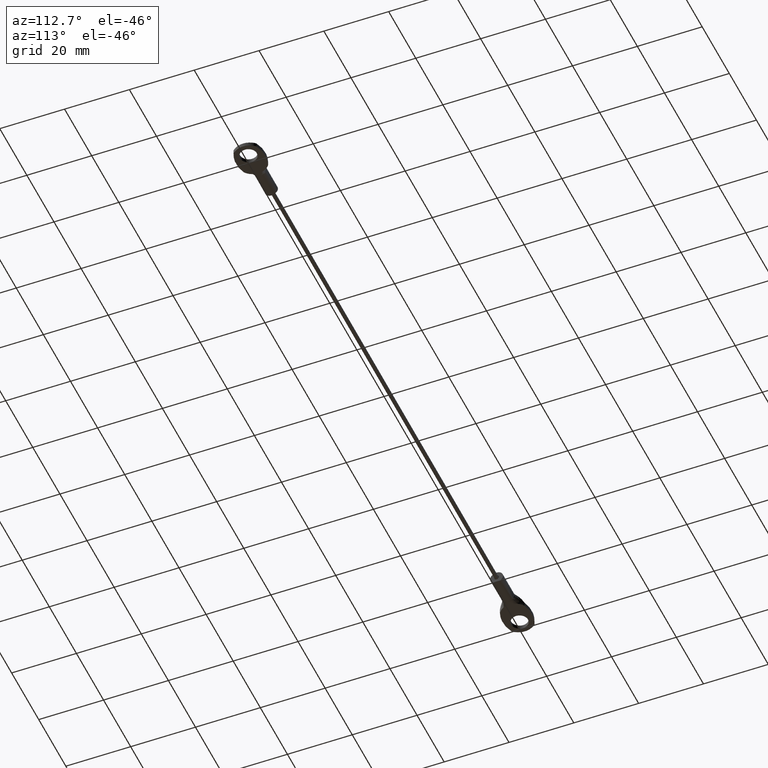
[diagram: clean part render]
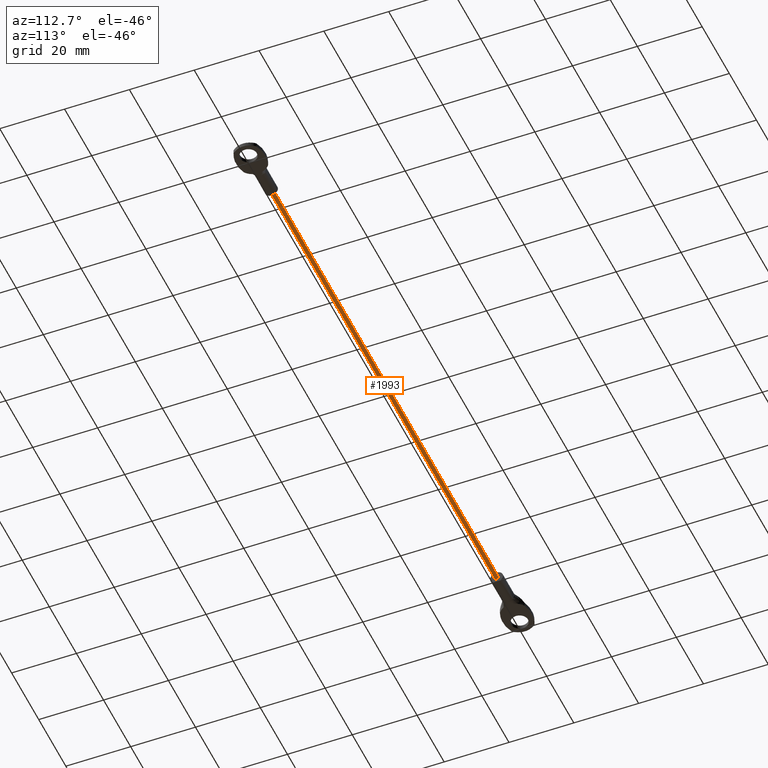
[diagram: same view with one face highlighted and labeled with its STEP entity id]
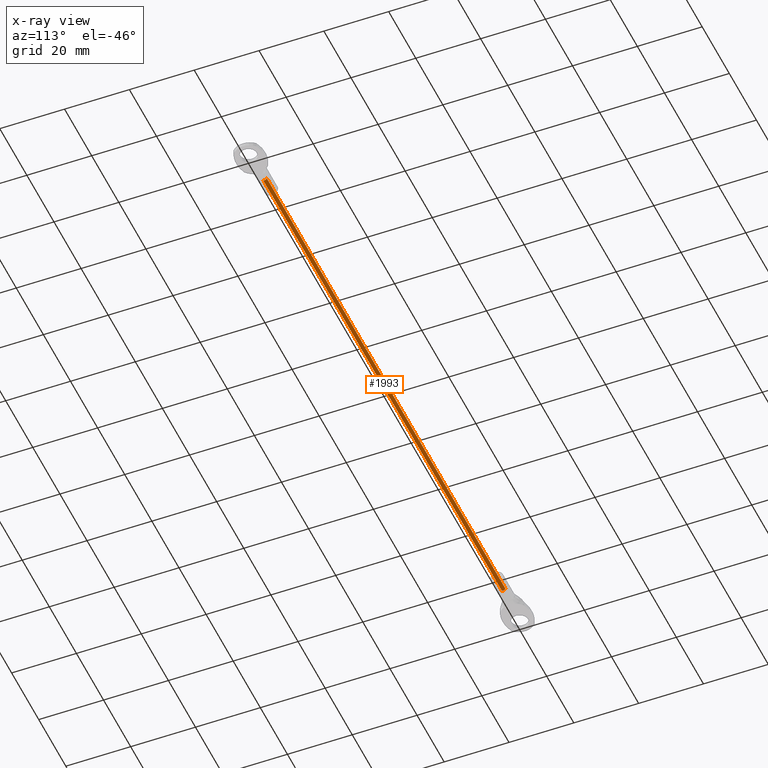
[diagram: x-ray of the same camera — body ghosted, the highlighted face saturated]
A machine part, auxiliary view. The second image highlights one B-rep face of the part: STEP entity #1993.
The next image is the same camera in x-ray: the body ghosted, the highlighted face saturated — about 0% of this face is hidden behind the body in this view.
In plain terms, the highlighted face is a freeform B-spline surface patch.
Its self-contained STEP definition (entity closure, byte-faithful):
#1891=CARTESIAN_POINT('',(-7.599999999999993,0.595805715818200,2.070820540794055));
#1892=CARTESIAN_POINT('',(-7.599999999999993,0.597832569269163,2.053768837182786));
#1893=CARTESIAN_POINT('',(-7.599999999999993,0.598880879053120,2.036629123720914));
#1894=CARTESIAN_POINT('',(-7.599999999999993,0.635510002774034,1.437748244667794));
#1895=CARTESIAN_POINT('',(-7.599999999999993,0.036629123720914,1.401119120946880));
#1896=CARTESIAN_POINT('',(-7.599999999999993,-0.562251755332206,1.364489997225966));
#1897=CARTESIAN_POINT('',(-7.599999999999993,-0.598880879053120,1.963370876279086));
#1898=CARTESIAN_POINT('',(-192.510000000000050,0.595805715818200,2.070820540794055));
#1899=CARTESIAN_POINT('',(-192.510000000000130,0.597832569269163,2.053768837182786));
#1900=CARTESIAN_POINT('',(-192.510000000000100,0.598880879053120,2.036629123720914));
#1901=CARTESIAN_POINT('',(-192.510000000000050,0.635510002774034,1.437748244667794));
#1902=CARTESIAN_POINT('',(-192.510000000000100,0.036629123720914,1.401119120946880));
#1903=CARTESIAN_POINT('',(-192.510000000000050,-0.562251755332206,1.364489997225966));
#1904=CARTESIAN_POINT('',(-192.510000000000100,-0.598880879053120,1.963370876279086));
#1912=(BOUNDED_SURFACE()B_SPLINE_SURFACE(2,1,((#1891,#1898),(#1892,#1899),(#1893,#1900),(#1894,#1901),(#1895,#1902),(#1896,#1903),(#1897,#1904)),.UNSPECIFIED.,.F.,.F.,.U.)B_SPLINE_SURFACE_WITH_KNOTS((3,2,2,3),(2,2),(3.078760800517997,3.141592653589793,4.712388980384690,6.283185307179586),(0.0,184.910000000000110),.UNSPECIFIED.)GEOMETRIC_REPRESENTATION_ITEM()RATIONAL_B_SPLINE_SURFACE(((0.977505800795127,0.977505800795127),(0.988284271247462,0.988284271247462),(1.0,1.0),(0.707106781186548,0.707106781186548),(1.0,1.0),(0.707106781186548,0.707106781186548),(1.0,1.0)))REPRESENTATION_ITEM('')SURFACE());
#1913=CARTESIAN_POINT('',(-11.999999999999989,0.595805715589397,2.070820542718947));
#1914=VERTEX_POINT('',#1913);
#1915=CARTESIAN_POINT('',(-12.0,0.0,1.400000000000000));
#1916=VERTEX_POINT('',#1915);
#1917=CARTESIAN_POINT('',(-11.999999999999993,0.595805715589397,2.070820542718947));
#1918=CARTESIAN_POINT('',(-11.999999999999998,0.600000000000000,2.035534473736389));
#1919=CARTESIAN_POINT('',(-12.0,0.600000000000000,2.0));
#1920=CARTESIAN_POINT('',(-12.0,0.600000000000000,1.400000000000000));
#1921=CARTESIAN_POINT('',(-12.0,0.0,1.400000000000000));
#1929=(BOUNDED_CURVE()B_SPLINE_CURVE(2,(#1917,#1918,#1919,#1920,#1921),.UNSPECIFIED.,.F.,.U.)B_SPLINE_CURVE_WITH_KNOTS((3,2,3),(0.229562472423634,0.250000000000000,0.500000000000000),.UNSPECIFIED.)CURVE()GEOMETRIC_REPRESENTATION_ITEM()RATIONAL_B_SPLINE_CURVE((0.956026752047501,0.976055947054278,1.0,0.707106781186547,1.0))REPRESENTATION_ITEM(''));
#1930=EDGE_CURVE('',#1914,#1916,#1929,.T.);
#1931=ORIENTED_EDGE('',*,*,#1930,.T.);
#1932=CARTESIAN_POINT('',(-12.0,-0.598880879052782,1.963370876273560));
#1933=VERTEX_POINT('',#1932);
#1934=CARTESIAN_POINT('',(-12.0,0.0,1.400000000000000));
#1935=CARTESIAN_POINT('',(-12.0,-0.564423640132985,1.400000000000000));
#1936=CARTESIAN_POINT('',(-12.000000000000004,-0.598880879052782,1.963370876273560));
#1944=(BOUNDED_CURVE()B_SPLINE_CURVE(2,(#1934,#1935,#1936),.UNSPECIFIED.,.F.,.U.)B_SPLINE_CURVE_WITH_KNOTS((3,3),(0.500000000000000,0.739332962238785),.UNSPECIFIED.)CURVE()GEOMETRIC_REPRESENTATION_ITEM()RATIONAL_B_SPLINE_CURVE((1.0,0.719603993286895,0.976072041666380))REPRESENTATION_ITEM(''));
#1945=EDGE_CURVE('',#1916,#1933,#1944,.T.);
#1946=ORIENTED_EDGE('',*,*,#1945,.T.);
#1947=CARTESIAN_POINT('',(-188.0,-0.598880879052782,1.963370876273560));
#1948=VERTEX_POINT('',#1947);
#1949=CARTESIAN_POINT('',(-12.0,-0.598880879052782,1.963370876273560));
#1950=CARTESIAN_POINT('',(-188.0,-0.598880879052782,1.963370876273560));
#1951=QUASI_UNIFORM_CURVE('',1,(#1949,#1950),.UNSPECIFIED.,.F.,.U.);
#1952=EDGE_CURVE('',#1933,#1948,#1951,.T.);
#1953=ORIENTED_EDGE('',*,*,#1952,.T.);
#1954=CARTESIAN_POINT('',(-188.0,0.0,1.400000000000000));
#1955=VERTEX_POINT('',#1954);
#1956=CARTESIAN_POINT('',(-188.0,0.0,1.400000000000000));
#1957=CARTESIAN_POINT('',(-188.000000000000090,-0.564423640132985,1.400000000000000));
#1958=CARTESIAN_POINT('',(-188.000000000000030,-0.598880879052782,1.963370876273560));
#1966=(BOUNDED_CURVE()B_SPLINE_CURVE(2,(#1956,#1957,#1958),.UNSPECIFIED.,.F.,.U.)B_SPLINE_CURVE_WITH_KNOTS((3,3),(0.500000000000000,0.739332962238785),.UNSPECIFIED.)CURVE()GEOMETRIC_REPRESENTATION_ITEM()RATIONAL_B_SPLINE_CURVE((1.0,0.719603993286895,0.976072041666380))REPRESENTATION_ITEM(''));
#1967=EDGE_CURVE('',#1955,#1948,#1966,.T.);
#1968=ORIENTED_EDGE('',*,*,#1967,.F.);
#1969=CARTESIAN_POINT('',(-188.0,0.595805715589397,2.070820542718950));
#1970=VERTEX_POINT('',#1969);
#1971=CARTESIAN_POINT('',(-188.000000000000060,0.595805715589397,2.070820542718950));
#1972=CARTESIAN_POINT('',(-188.000000000000060,0.600000000000000,2.035534473736390));
#1973=CARTESIAN_POINT('',(-188.0,0.600000000000000,2.0));
#1974=CARTESIAN_POINT('',(-188.000000000000140,0.600000000000000,1.400000000000000));
#1975=CARTESIAN_POINT('',(-188.0,0.0,1.400000000000000));
#1983=(BOUNDED_CURVE()B_SPLINE_CURVE(2,(#1971,#1972,#1973,#1974,#1975),.UNSPECIFIED.,.F.,.U.)B_SPLINE_CURVE_WITH_KNOTS((3,2,3),(0.229562472423632,0.250000000000000,0.500000000000000),.UNSPECIFIED.)CURVE()GEOMETRIC_REPRESENTATION_ITEM()RATIONAL_B_SPLINE_CURVE((0.956026752047498,0.976055947054276,1.0,0.707106781186547,1.0))REPRESENTATION_ITEM(''));
#1984=EDGE_CURVE('',#1970,#1955,#1983,.T.);
#1985=ORIENTED_EDGE('',*,*,#1984,.F.);
#1986=CARTESIAN_POINT('',(-11.999999999999989,0.595805715589397,2.070820542718947));
#1987=CARTESIAN_POINT('',(-188.0,0.595805715589397,2.070820542718950));
#1988=QUASI_UNIFORM_CURVE('',1,(#1986,#1987),.UNSPECIFIED.,.F.,.U.);
#1989=EDGE_CURVE('',#1914,#1970,#1988,.T.);
#1990=ORIENTED_EDGE('',*,*,#1989,.F.);
#1991=EDGE_LOOP('',(#1931,#1946,#1953,#1968,#1985,#1990));
#1992=FACE_OUTER_BOUND('',#1991,.T.);
#1993=ADVANCED_FACE('',(#1992),#1912,.T.);